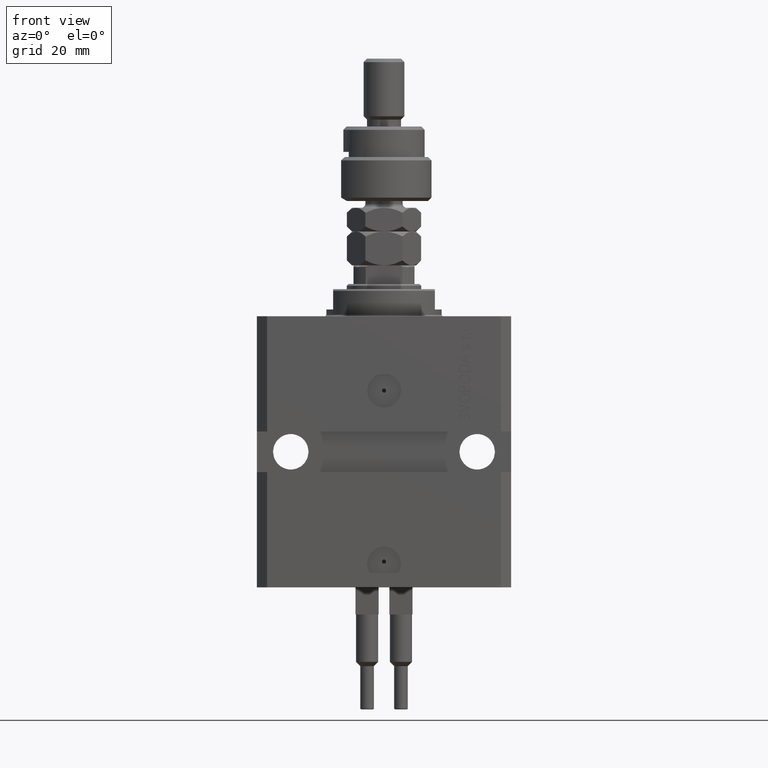
[diagram: clean part render]
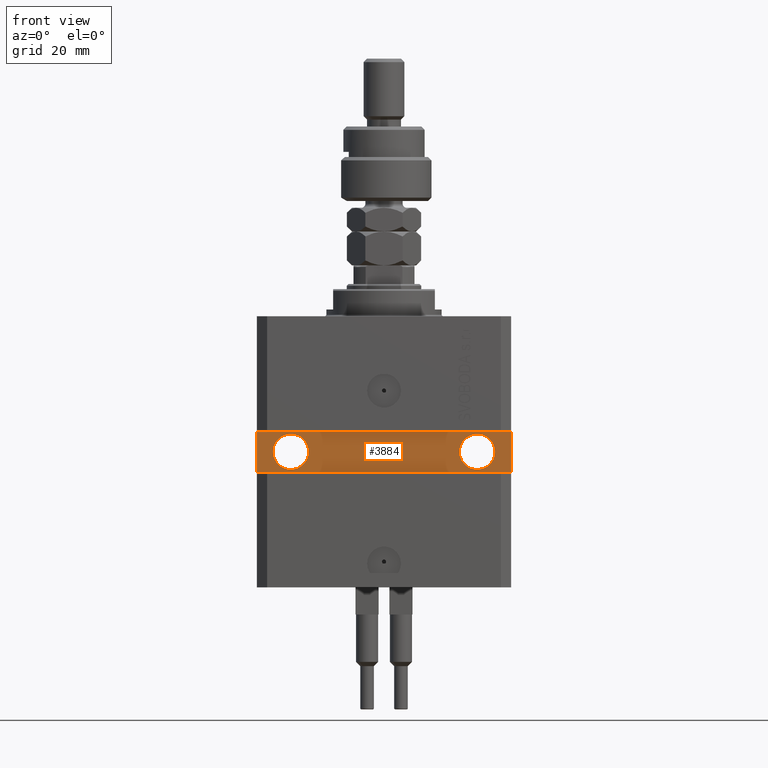
[diagram: same view with one face highlighted and labeled with its STEP entity id]
A machine part, front view. The second image highlights one B-rep face of the part: STEP entity #3884.
In plain terms, the highlighted planar face has unit normal (0, -1, 0).
Its self-contained STEP definition (entity closure, byte-faithful):
#374 = CARTESIAN_POINT ( 'NONE',  ( -37.50000000000000000, -24.50000000000000000, -46.00000000000000000 ) ) ;
#596 = VERTEX_POINT ( 'NONE', #31214 ) ;
#2371 = EDGE_CURVE ( 'NONE', #596, #22645, #3817, .T. ) ;
#2475 = LINE ( 'NONE', #5558, #3373 ) ;
#2708 = FACE_BOUND ( 'NONE', #12684, .T. ) ;
#3108 = VERTEX_POINT ( 'NONE', #40843 ) ;
#3373 = VECTOR ( 'NONE', #36661, 1000.000000000000000 ) ;
#3817 = CIRCLE ( 'NONE', #24873, 5.249999999999994671 ) ;
#3884 = ADVANCED_FACE ( 'NONE', ( #2708, #18246, #4661 ), #7043, .T. ) ;
#4661 = FACE_OUTER_BOUND ( 'NONE', #25270, .T. ) ;
#4977 = DIRECTION ( 'NONE',  ( 1.000000000000000000, 0.000000000000000000, 0.000000000000000000 ) ) ;
#5374 = LINE ( 'NONE', #32413, #38455 ) ;
#5558 = CARTESIAN_POINT ( 'NONE',  ( -37.50000000000000000, -24.50000000000000000, -34.00000000000000000 ) ) ;
#6463 = CARTESIAN_POINT ( 'NONE',  ( 37.49999999999999289, -24.49999999999999289, -33.99999999999998579 ) ) ;
#7043 = PLANE ( 'NONE',  #41199 ) ;
#7965 = CARTESIAN_POINT ( 'NONE',  ( 2.191435984341280931E-15, -24.49999999999999645, 0.000000000000000000 ) ) ;
#7971 = VERTEX_POINT ( 'NONE', #374 ) ;
#8026 = DIRECTION ( 'NONE',  ( 1.101411730780568590E-16, -1.000000000000000000, 0.000000000000000000 ) ) ;
#9691 = ORIENTED_EDGE ( 'NONE', *, *, #49782, .T. ) ;
#10722 = CARTESIAN_POINT ( 'NONE',  ( 32.75000000000000000, -24.49999999999999289, -40.00000000000000000 ) ) ;
#10775 = EDGE_CURVE ( 'NONE', #26464, #42736, #39012, .T. ) ;
#10812 = DIRECTION ( 'NONE',  ( 1.000000000000000000, 9.251858538542972814E-17, 0.000000000000000000 ) ) ;
#11299 = EDGE_CURVE ( 'NONE', #25696, #3108, #14582, .T. ) ;
#11853 = DIRECTION ( 'NONE',  ( 1.000000000000000000, 0.000000000000000000, 0.000000000000000000 ) ) ;
#12684 = EDGE_LOOP ( 'NONE', ( #45246, #40502 ) ) ;
#13066 = CARTESIAN_POINT ( 'NONE',  ( -22.24999999999999645, -24.50000000000000000, -40.00000000000000711 ) ) ;
#14251 = ORIENTED_EDGE ( 'NONE', *, *, #10775, .T. ) ;
#14582 = CIRCLE ( 'NONE', #46384, 5.249999999999997335 ) ;
#14615 = DIRECTION ( 'NONE',  ( -1.000000000000000000, -9.251858538542972814E-17, -1.850371707708594563E-16 ) ) ;
#14872 = CARTESIAN_POINT ( 'NONE',  ( -37.50000000000000000, -24.50000000000000000, -46.00000000000000000 ) ) ;
#15077 = AXIS2_PLACEMENT_3D ( 'NONE', #47312, #15660, #38621 ) ;
#15204 = EDGE_CURVE ( 'NONE', #42736, #7971, #2475, .T. ) ;
#15609 = DIRECTION ( 'NONE',  ( 1.000000000000000000, 9.251858538542972814E-17, 0.000000000000000000 ) ) ;
#15660 = DIRECTION ( 'NONE',  ( 1.101411730780568590E-16, -1.000000000000000000, 0.000000000000000000 ) ) ;
#16481 = DIRECTION ( 'NONE',  ( 1.171720209325604191E-16, -1.000000000000000000, 0.000000000000000000 ) ) ;
#18246 = FACE_BOUND ( 'NONE', #42003, .T. ) ;
#18377 = CIRCLE ( 'NONE', #20858, 5.249999999999994671 ) ;
#18975 = CARTESIAN_POINT ( 'NONE',  ( 37.49999999999999289, -24.49999999999999289, -33.99999999999998579 ) ) ;
#19492 = CARTESIAN_POINT ( 'NONE',  ( 27.50000000000000711, -24.49999999999999289, -40.00000000000000000 ) ) ;
#20858 = AXIS2_PLACEMENT_3D ( 'NONE', #47899, #16481, #31798 ) ;
#22269 = VECTOR ( 'NONE', #10812, 1000.000000000000000 ) ;
#22645 = VERTEX_POINT ( 'NONE', #10722 ) ;
#24351 = EDGE_CURVE ( 'NONE', #3108, #25696, #37060, .T. ) ;
#24873 = AXIS2_PLACEMENT_3D ( 'NONE', #19492, #46812, #11853 ) ;
#25270 = EDGE_LOOP ( 'NONE', ( #9691, #46026, #14251, #47081 ) ) ;
#25696 = VERTEX_POINT ( 'NONE', #13066 ) ;
#26464 = VERTEX_POINT ( 'NONE', #18975 ) ;
#28768 = EDGE_CURVE ( 'NONE', #22645, #596, #18377, .T. ) ;
#30491 = CARTESIAN_POINT ( 'NONE',  ( -37.50000000000000000, -24.50000000000000000, -34.00000000000000000 ) ) ;
#31214 = CARTESIAN_POINT ( 'NONE',  ( 22.25000000000001421, -24.49999999999999289, -40.00000000000000000 ) ) ;
#31522 = CARTESIAN_POINT ( 'NONE',  ( 37.49999999999999289, -24.49999999999999289, -46.00000000000000000 ) ) ;
#31798 = DIRECTION ( 'NONE',  ( 1.000000000000000000, 0.000000000000000000, 0.000000000000000000 ) ) ;
#31889 = ORIENTED_EDGE ( 'NONE', *, *, #24351, .F. ) ;
#32413 = CARTESIAN_POINT ( 'NONE',  ( 37.49999999999999289, -24.49999999999999289, -46.00000000000000000 ) ) ;
#36661 = DIRECTION ( 'NONE',  ( 0.000000000000000000, 0.000000000000000000, -1.000000000000000000 ) ) ;
#37060 = CIRCLE ( 'NONE', #15077, 5.249999999999997335 ) ;
#38212 = VECTOR ( 'NONE', #14615, 1000.000000000000000 ) ;
#38455 = VECTOR ( 'NONE', #39820, 1000.000000000000000 ) ;
#38621 = DIRECTION ( 'NONE',  ( 1.000000000000000000, 0.000000000000000000, 0.000000000000000000 ) ) ;
#39012 = LINE ( 'NONE', #6463, #38212 ) ;
#39341 = DIRECTION ( 'NONE',  ( 9.251858538542972814E-17, -1.000000000000000000, 0.000000000000000000 ) ) ;
#39820 = DIRECTION ( 'NONE',  ( 0.000000000000000000, 0.000000000000000000, 1.000000000000000000 ) ) ;
#40502 = ORIENTED_EDGE ( 'NONE', *, *, #2371, .F. ) ;
#40843 = CARTESIAN_POINT ( 'NONE',  ( -32.74999999999999289, -24.50000000000000000, -40.00000000000000711 ) ) ;
#41199 = AXIS2_PLACEMENT_3D ( 'NONE', #7965, #39341, #15609 ) ;
#42003 = EDGE_LOOP ( 'NONE', ( #48213, #31889 ) ) ;
#42736 = VERTEX_POINT ( 'NONE', #30491 ) ;
#45246 = ORIENTED_EDGE ( 'NONE', *, *, #28768, .F. ) ;
#46026 = ORIENTED_EDGE ( 'NONE', *, *, #46681, .T. ) ;
#46384 = AXIS2_PLACEMENT_3D ( 'NONE', #46816, #8026, #4977 ) ;
#46681 = EDGE_CURVE ( 'NONE', #48146, #26464, #5374, .T. ) ;
#46812 = DIRECTION ( 'NONE',  ( 1.171720209325604191E-16, -1.000000000000000000, 0.000000000000000000 ) ) ;
#46816 = CARTESIAN_POINT ( 'NONE',  ( -27.49999999999999289, -24.50000000000000000, -40.00000000000000711 ) ) ;
#47081 = ORIENTED_EDGE ( 'NONE', *, *, #15204, .T. ) ;
#47312 = CARTESIAN_POINT ( 'NONE',  ( -27.49999999999999289, -24.50000000000000000, -40.00000000000000711 ) ) ;
#47899 = CARTESIAN_POINT ( 'NONE',  ( 27.50000000000000711, -24.49999999999999289, -40.00000000000000000 ) ) ;
#48146 = VERTEX_POINT ( 'NONE', #31522 ) ;
#48213 = ORIENTED_EDGE ( 'NONE', *, *, #11299, .F. ) ;
#49782 = EDGE_CURVE ( 'NONE', #7971, #48146, #49846, .T. ) ;
#49846 = LINE ( 'NONE', #14872, #22269 ) ;